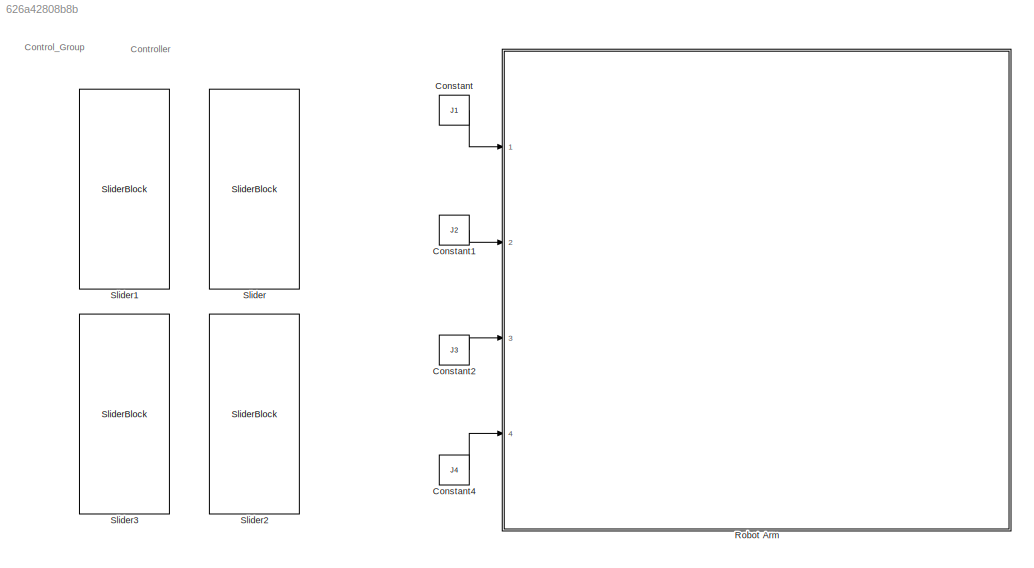
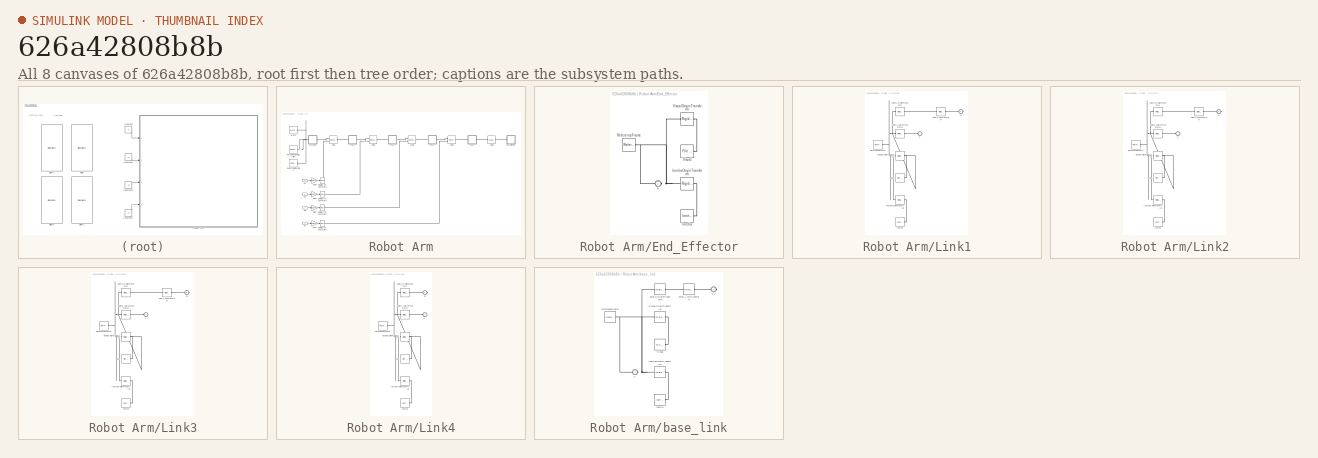
[diagram: thumbnail index - all 8 canvases of the model, root first then tree order]
MODEL slx_626a42808b8b
KIND model
CONFIG AbsTol = auto
CONFIG EnableMultiTasking = off
CONFIG FixedStep = auto
CONFIG MaxStep = auto
CONFIG MinStep = auto
CONFIG RelTol = 1e-3
CONFIG SampleTimeConstraint = Unconstrained
CONFIG SolverName = VariableStepAuto
CONFIG StartTime = 0.0
CONFIG StopTime = inf
WORKSPACE source: mxarray member
WORKSPACE J1 = 0
WORKSPACE J2 = 90.7830342577
WORKSPACE J3 = 87.6508972268
WORKSPACE J4 = 180
BLOCK [Constant] Constant
  Value = J1
BLOCK [Constant] Constant1
  Value = J2
BLOCK [Constant] Constant2
  Value = J3
BLOCK [Constant] Constant4
  Value = J4
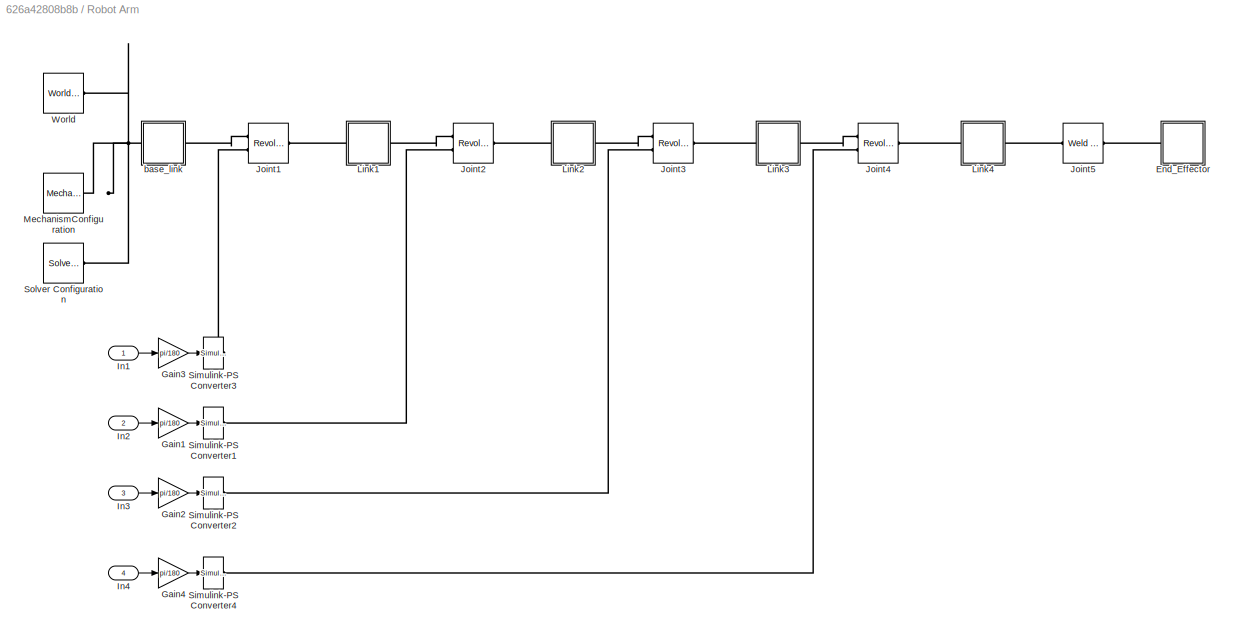
BLOCK [SubSystem] Robot Arm
  Ports = [4]
  RequestExecContextInheritance = off
BLOCK [SubSystem] Robot Arm/End_Effector
  Ports = [0, 0, 0, 0, 0, 1]
  RequestExecContextInheritance = off
BLOCK [PMIOPort] Robot Arm/End_Effector/F
  Side = Left
BLOCK [Reference] Robot Arm/End_Effector/Inertia  REF=sm_lib/Body Elements/Inertia
  Ports = [0, 0, 0, 0, 0, 0, 1]
  SourceBlock = sm_lib/Body Elements/Inertia
  SourceProductBaseCode = MS
  SourceType = Inertia
BLOCK [Reference] Robot Arm/End_Effector/InertiaOriginTransform  REF=sm_lib/Frames and
Transforms/Rigid
Transform
  Ports = [0, 0, 0, 0, 0, 1, 1]
  SourceBlock = sm_lib/Frames and\nTransforms/Rigid\nTransform
  SourceProductBaseCode = MS
  SourceType = Rigid\nTransform
BLOCK [Reference] Robot Arm/End_Effector/ReferenceFrame  REF=sm_lib/Frames and
Transforms/Reference
Frame
  Ports = [0, 0, 0, 0, 0, 0, 1]
  SourceBlock = sm_lib/Frames and\nTransforms/Reference\nFrame
  SourceProductBaseCode = MS
  SourceType = Reference\nFrame
BLOCK [Reference] Robot Arm/End_Effector/Visual  REF=sm_lib/Body Elements/File Solid
  Ports = [0, 0, 0, 0, 0, 0, 1]
  SourceBlock = sm_lib/Body Elements/File Solid
  SourceProductBaseCode = MS
  SourceType = File Solid
BLOCK [Reference] Robot Arm/End_Effector/VisualOriginTransform  REF=sm_lib/Frames and
Transforms/Rigid
Transform
  Ports = [0, 0, 0, 0, 0, 1, 1]
  SourceBlock = sm_lib/Frames and\nTransforms/Rigid\nTransform
  SourceProductBaseCode = MS
  SourceType = Rigid\nTransform
BLOCK [Gain] Robot Arm/Gain1
  Gain = pi/180
BLOCK [Gain] Robot Arm/Gain2
  Gain = pi/180
BLOCK [Gain] Robot Arm/Gain3
  Gain = pi/180
BLOCK [Gain] Robot Arm/Gain4
  Gain = pi/180
BLOCK [Inport] Robot Arm/In1
BLOCK [Inport] Robot Arm/In2
  Port = 2
BLOCK [Inport] Robot Arm/In3
  Port = 3
BLOCK [Inport] Robot Arm/In4
  Port = 4
BLOCK [Reference] Robot Arm/Joint1  REF=sm_lib/Joints/Revolute Joint
  Ports = [0, 0, 0, 0, 0, 2, 1]
  SourceBlock = sm_lib/Joints/Revolute Joint
  SourceProductBaseCode = MS
  SourceType = Revolute Joint
BLOCK [Reference] Robot Arm/Joint2  REF=sm_lib/Joints/Revolute Joint
  Ports = [0, 0, 0, 0, 0, 2, 1]
  SourceBlock = sm_lib/Joints/Revolute Joint
  SourceProductBaseCode = MS
  SourceType = Revolute Joint
BLOCK [Reference] Robot Arm/Joint3  REF=sm_lib/Joints/Revolute Joint
  Ports = [0, 0, 0, 0, 0, 2, 1]
  SourceBlock = sm_lib/Joints/Revolute Joint
  SourceProductBaseCode = MS
  SourceType = Revolute Joint
BLOCK [Reference] Robot Arm/Joint4  REF=sm_lib/Joints/Revolute Joint
  Ports = [0, 0, 0, 0, 0, 2, 1]
  SourceBlock = sm_lib/Joints/Revolute Joint
  SourceProductBaseCode = MS
  SourceType = Revolute Joint
BLOCK [Reference] Robot Arm/Joint5  REF=sm_lib/Joints/Weld Joint
  Ports = [0, 0, 0, 0, 0, 1, 1]
  SourceBlock = sm_lib/Joints/Weld Joint
  SourceProductBaseCode = MS
  SourceType = Weld Joint
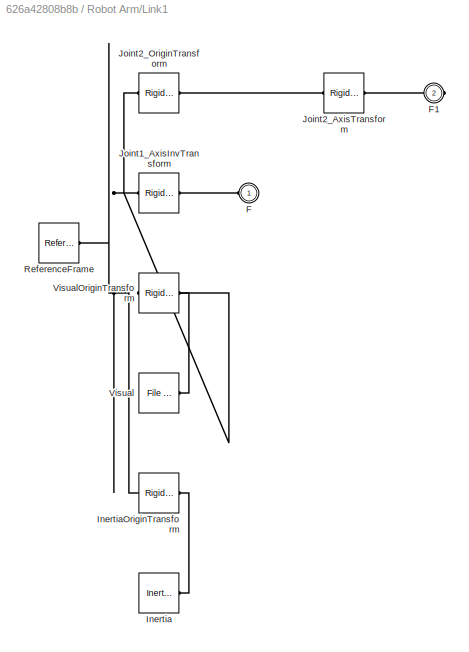
BLOCK [SubSystem] Robot Arm/Link1
  Ports = [0, 0, 0, 0, 0, 1, 1]
  RequestExecContextInheritance = off
BLOCK [PMIOPort] Robot Arm/Link1/F
  Side = Left
BLOCK [PMIOPort] Robot Arm/Link1/F1
  Port = 2
  Side = Right
BLOCK [Reference] Robot Arm/Link1/Inertia  REF=sm_lib/Body Elements/Inertia
  Ports = [0, 0, 0, 0, 0, 0, 1]
  SourceBlock = sm_lib/Body Elements/Inertia
  SourceProductBaseCode = MS
  SourceType = Inertia
BLOCK [Reference] Robot Arm/Link1/InertiaOriginTransform  REF=sm_lib/Frames and
Transforms/Rigid
Transform
  Ports = [0, 0, 0, 0, 0, 1, 1]
  SourceBlock = sm_lib/Frames and\nTransforms/Rigid\nTransform
  SourceProductBaseCode = MS
  SourceType = Rigid\nTransform
BLOCK [Reference] Robot Arm/Link1/Joint1_AxisInvTransform  REF=sm_lib/Frames and
Transforms/Rigid
Transform
  Ports = [0, 0, 0, 0, 0, 1, 1]
  SourceBlock = sm_lib/Frames and\nTransforms/Rigid\nTransform
  SourceProductBaseCode = MS
  SourceType = Rigid\nTransform
BLOCK [Reference] Robot Arm/Link1/Joint2_AxisTransform  REF=sm_lib/Frames and
Transforms/Rigid
Transform
  Ports = [0, 0, 0, 0, 0, 1, 1]
  SourceBlock = sm_lib/Frames and\nTransforms/Rigid\nTransform
  SourceProductBaseCode = MS
  SourceType = Rigid\nTransform
BLOCK [Reference] Robot Arm/Link1/Joint2_OriginTransform  REF=sm_lib/Frames and
Transforms/Rigid
Transform
  Ports = [0, 0, 0, 0, 0, 1, 1]
  SourceBlock = sm_lib/Frames and\nTransforms/Rigid\nTransform
  SourceProductBaseCode = MS
  SourceType = Rigid\nTransform
BLOCK [Reference] Robot Arm/Link1/ReferenceFrame  REF=sm_lib/Frames and
Transforms/Reference
Frame
  Ports = [0, 0, 0, 0, 0, 0, 1]
  SourceBlock = sm_lib/Frames and\nTransforms/Reference\nFrame
  SourceProductBaseCode = MS
  SourceType = Reference\nFrame
BLOCK [Reference] Robot Arm/Link1/Visual  REF=sm_lib/Body Elements/File Solid
  Ports = [0, 0, 0, 0, 0, 0, 1]
  SourceBlock = sm_lib/Body Elements/File Solid
  SourceProductBaseCode = MS
  SourceType = File Solid
BLOCK [Reference] Robot Arm/Link1/VisualOriginTransform  REF=sm_lib/Frames and
Transforms/Rigid
Transform
  Ports = [0, 0, 0, 0, 0, 1, 1]
  SourceBlock = sm_lib/Frames and\nTransforms/Rigid\nTransform
  SourceProductBaseCode = MS
  SourceType = Rigid\nTransform
BLOCK [SubSystem] Robot Arm/Link2
  Ports = [0, 0, 0, 0, 0, 1, 1]
  RequestExecContextInheritance = off
BLOCK [PMIOPort] Robot Arm/Link2/F
  Side = Left
BLOCK [PMIOPort] Robot Arm/Link2/F1
  Port = 2
  Side = Right
BLOCK [Reference] Robot Arm/Link2/Inertia  REF=sm_lib/Body Elements/Inertia
  Ports = [0, 0, 0, 0, 0, 0, 1]
  SourceBlock = sm_lib/Body Elements/Inertia
  SourceProductBaseCode = MS
  SourceType = Inertia
BLOCK [Reference] Robot Arm/Link2/InertiaOriginTransform  REF=sm_lib/Frames and
Transforms/Rigid
Transform
  Ports = [0, 0, 0, 0, 0, 1, 1]
  SourceBlock = sm_lib/Frames and\nTransforms/Rigid\nTransform
  SourceProductBaseCode = MS
  SourceType = Rigid\nTransform
BLOCK [Reference] Robot Arm/Link2/Joint2_AxisInvTransform  REF=sm_lib/Frames and
Transforms/Rigid
Transform
  Ports = [0, 0, 0, 0, 0, 1, 1]
  SourceBlock = sm_lib/Frames and\nTransforms/Rigid\nTransform
  SourceProductBaseCode = MS
  SourceType = Rigid\nTransform
BLOCK [Reference] Robot Arm/Link2/Joint3_AxisTransform  REF=sm_lib/Frames and
Transforms/Rigid
Transform
  Ports = [0, 0, 0, 0, 0, 1, 1]
  SourceBlock = sm_lib/Frames and\nTransforms/Rigid\nTransform
  SourceProductBaseCode = MS
  SourceType = Rigid\nTransform
BLOCK [Reference] Robot Arm/Link2/Joint3_OriginTransform  REF=sm_lib/Frames and
Transforms/Rigid
Transform
  Ports = [0, 0, 0, 0, 0, 1, 1]
  SourceBlock = sm_lib/Frames and\nTransforms/Rigid\nTransform
  SourceProductBaseCode = MS
  SourceType = Rigid\nTransform
BLOCK [Reference] Robot Arm/Link2/ReferenceFrame  REF=sm_lib/Frames and
Transforms/Reference
Frame
  Ports = [0, 0, 0, 0, 0, 0, 1]
  SourceBlock = sm_lib/Frames and\nTransforms/Reference\nFrame
  SourceProductBaseCode = MS
  SourceType = Reference\nFrame
BLOCK [Reference] Robot Arm/Link2/Visual  REF=sm_lib/Body Elements/File Solid
  Ports = [0, 0, 0, 0, 0, 0, 1]
  SourceBlock = sm_lib/Body Elements/File Solid
  SourceProductBaseCode = MS
  SourceType = File Solid
BLOCK [Reference] Robot Arm/Link2/VisualOriginTransform  REF=sm_lib/Frames and
Transforms/Rigid
Transform
  Ports = [0, 0, 0, 0, 0, 1, 1]
  SourceBlock = sm_lib/Frames and\nTransforms/Rigid\nTransform
  SourceProductBaseCode = MS
  SourceType = Rigid\nTransform
BLOCK [SubSystem] Robot Arm/Link3
  Ports = [0, 0, 0, 0, 0, 1, 1]
  RequestExecContextInheritance = off
BLOCK [PMIOPort] Robot Arm/Link3/F
  Side = Left
BLOCK [PMIOPort] Robot Arm/Link3/F1
  Port = 2
  Side = Right
BLOCK [Reference] Robot Arm/Link3/Inertia  REF=sm_lib/Body Elements/Inertia
  Ports = [0, 0, 0, 0, 0, 0, 1]
  SourceBlock = sm_lib/Body Elements/Inertia
  SourceProductBaseCode = MS
  SourceType = Inertia
BLOCK [Reference] Robot Arm/Link3/InertiaOriginTransform  REF=sm_lib/Frames and
Transforms/Rigid
Transform
  Ports = [0, 0, 0, 0, 0, 1, 1]
  SourceBlock = sm_lib/Frames and\nTransforms/Rigid\nTransform
  SourceProductBaseCode = MS
  SourceType = Rigid\nTransform
BLOCK [Reference] Robot Arm/Link3/Joint3_AxisInvTransform  REF=sm_lib/Frames and
Transforms/Rigid
Transform
  Ports = [0, 0, 0, 0, 0, 1, 1]
  SourceBlock = sm_lib/Frames and\nTransforms/Rigid\nTransform
  SourceProductBaseCode = MS
  SourceType = Rigid\nTransform
BLOCK [Reference] Robot Arm/Link3/Joint4_AxisTransform  REF=sm_lib/Frames and
Transforms/Rigid
Transform
  Ports = [0, 0, 0, 0, 0, 1, 1]
  SourceBlock = sm_lib/Frames and\nTransforms/Rigid\nTransform
  SourceProductBaseCode = MS
  SourceType = Rigid\nTransform
BLOCK [Reference] Robot Arm/Link3/Joint4_OriginTransform  REF=sm_lib/Frames and
Transforms/Rigid
Transform
  Ports = [0, 0, 0, 0, 0, 1, 1]
  SourceBlock = sm_lib/Frames and\nTransforms/Rigid\nTransform
  SourceProductBaseCode = MS
  SourceType = Rigid\nTransform
BLOCK [Reference] Robot Arm/Link3/ReferenceFrame  REF=sm_lib/Frames and
Transforms/Reference
Frame
  Ports = [0, 0, 0, 0, 0, 0, 1]
  SourceBlock = sm_lib/Frames and\nTransforms/Reference\nFrame
  SourceProductBaseCode = MS
  SourceType = Reference\nFrame
BLOCK [Reference] Robot Arm/Link3/Visual  REF=sm_lib/Body Elements/File Solid
  Ports = [0, 0, 0, 0, 0, 0, 1]
  SourceBlock = sm_lib/Body Elements/File Solid
  SourceProductBaseCode = MS
  SourceType = File Solid
BLOCK [Reference] Robot Arm/Link3/VisualOriginTransform  REF=sm_lib/Frames and
Transforms/Rigid
Transform
  Ports = [0, 0, 0, 0, 0, 1, 1]
  SourceBlock = sm_lib/Frames and\nTransforms/Rigid\nTransform
  SourceProductBaseCode = MS
  SourceType = Rigid\nTransform
BLOCK [SubSystem] Robot Arm/Link4
  Ports = [0, 0, 0, 0, 0, 1, 1]
  RequestExecContextInheritance = off
BLOCK [PMIOPort] Robot Arm/Link4/F
  Side = Left
BLOCK [PMIOPort] Robot Arm/Link4/F1
  Port = 2
  Side = Right
BLOCK [Reference] Robot Arm/Link4/Inertia  REF=sm_lib/Body Elements/Inertia
  Ports = [0, 0, 0, 0, 0, 0, 1]
  SourceBlock = sm_lib/Body Elements/Inertia
  SourceProductBaseCode = MS
  SourceType = Inertia
BLOCK [Reference] Robot Arm/Link4/InertiaOriginTransform  REF=sm_lib/Frames and
Transforms/Rigid
Transform
  Ports = [0, 0, 0, 0, 0, 1, 1]
  SourceBlock = sm_lib/Frames and\nTransforms/Rigid\nTransform
  SourceProductBaseCode = MS
  SourceType = Rigid\nTransform
BLOCK [Reference] Robot Arm/Link4/Joint4_AxisInvTransform  REF=sm_lib/Frames and
Transforms/Rigid
Transform
  Ports = [0, 0, 0, 0, 0, 1, 1]
  SourceBlock = sm_lib/Frames and\nTransforms/Rigid\nTransform
  SourceProductBaseCode = MS
  SourceType = Rigid\nTransform
BLOCK [Reference] Robot Arm/Link4/Joint5_OriginTransform  REF=sm_lib/Frames and
Transforms/Rigid
Transform
  Ports = [0, 0, 0, 0, 0, 1, 1]
  SourceBlock = sm_lib/Frames and\nTransforms/Rigid\nTransform
  SourceProductBaseCode = MS
  SourceType = Rigid\nTransform
BLOCK [Reference] Robot Arm/Link4/ReferenceFrame  REF=sm_lib/Frames and
Transforms/Reference
Frame
  Ports = [0, 0, 0, 0, 0, 0, 1]
  SourceBlock = sm_lib/Frames and\nTransforms/Reference\nFrame
  SourceProductBaseCode = MS
  SourceType = Reference\nFrame
BLOCK [Reference] Robot Arm/Link4/Visual  REF=sm_lib/Body Elements/File Solid
  Ports = [0, 0, 0, 0, 0, 0, 1]
  SourceBlock = sm_lib/Body Elements/File Solid
  SourceProductBaseCode = MS
  SourceType = File Solid
BLOCK [Reference] Robot Arm/Link4/VisualOriginTransform  REF=sm_lib/Frames and
Transforms/Rigid
Transform
  Ports = [0, 0, 0, 0, 0, 1, 1]
  SourceBlock = sm_lib/Frames and\nTransforms/Rigid\nTransform
  SourceProductBaseCode = MS
  SourceType = Rigid\nTransform
BLOCK [Reference] Robot Arm/MechanismConfiguration  REF=sm_lib/Utilities/Mechanism
Configuration
  Ports = [0, 0, 0, 0, 0, 0, 1]
  SourceBlock = sm_lib/Utilities/Mechanism\nConfiguration
  SourceProductBaseCode = MS
  SourceType = Mechanism\nConfiguration
BLOCK [Reference] Robot Arm/Simulink-PS Converter1  REF=nesl_utility/Simulink-PS
Converter
  Ports = [1, 0, 0, 0, 0, 0, 1]
  SourceBlock = nesl_utility/Simulink-PS\nConverter
  SourceProductBaseCode = SS,PW,VE
  SourceType = Simulink-PS\nConverter
BLOCK [Reference] Robot Arm/Simulink-PS Converter2  REF=nesl_utility/Simulink-PS
Converter
  Ports = [1, 0, 0, 0, 0, 0, 1]
  SourceBlock = nesl_utility/Simulink-PS\nConverter
  SourceProductBaseCode = SS,PW,VE
  SourceType = Simulink-PS\nConverter
BLOCK [Reference] Robot Arm/Simulink-PS Converter3  REF=nesl_utility/Simulink-PS
Converter
  Ports = [1, 0, 0, 0, 0, 0, 1]
  SourceBlock = nesl_utility/Simulink-PS\nConverter
  SourceProductBaseCode = SS,PW,VE
  SourceType = Simulink-PS\nConverter
BLOCK [Reference] Robot Arm/Simulink-PS Converter4  REF=nesl_utility/Simulink-PS
Converter
  Ports = [1, 0, 0, 0, 0, 0, 1]
  SourceBlock = nesl_utility/Simulink-PS\nConverter
  SourceProductBaseCode = SS,PW,VE
  SourceType = Simulink-PS\nConverter
BLOCK [Reference] Robot Arm/Solver Configuration  REF=nesl_utility/Solver
Configuration
  Ports = [0, 0, 0, 0, 0, 0, 1]
  SourceBlock = nesl_utility/Solver\nConfiguration
  SourceProductBaseCode = SS,PW,VE
  SourceType = Solver\nConfiguration
BLOCK [Reference] Robot Arm/World  REF=sm_lib/Frames and
Transforms/World Frame
  Ports = [0, 0, 0, 0, 0, 0, 1]
  SourceBlock = sm_lib/Frames and\nTransforms/World Frame
  SourceProductBaseCode = MS
  SourceType = World Frame
BLOCK [SubSystem] Robot Arm/base_link
  Ports = [0, 0, 0, 0, 0, 1, 1]
  RequestExecContextInheritance = off
BLOCK [PMIOPort] Robot Arm/base_link/F
  Side = Left
BLOCK [PMIOPort] Robot Arm/base_link/F1
  Port = 2
  Side = Right
BLOCK [Reference] Robot Arm/base_link/Inertia  REF=sm_lib/Body Elements/Inertia
  Ports = [0, 0, 0, 0, 0, 0, 1]
  SourceBlock = sm_lib/Body Elements/Inertia
  SourceProductBaseCode = MS
  SourceType = Inertia
BLOCK [Reference] Robot Arm/base_link/InertiaOriginTransform  REF=sm_lib/Frames and
Transforms/Rigid
Transform
  Ports = [0, 0, 0, 0, 0, 1, 1]
  SourceBlock = sm_lib/Frames and\nTransforms/Rigid\nTransform
  SourceProductBaseCode = MS
  SourceType = Rigid\nTransform
BLOCK [Reference] Robot Arm/base_link/Joint1_AxisTransform  REF=sm_lib/Frames and
Transforms/Rigid
Transform
  Ports = [0, 0, 0, 0, 0, 1, 1]
  SourceBlock = sm_lib/Frames and\nTransforms/Rigid\nTransform
  SourceProductBaseCode = MS
  SourceType = Rigid\nTransform
BLOCK [Reference] Robot Arm/base_link/Joint1_OriginTransform  REF=sm_lib/Frames and
Transforms/Rigid
Transform
  Ports = [0, 0, 0, 0, 0, 1, 1]
  SourceBlock = sm_lib/Frames and\nTransforms/Rigid\nTransform
  SourceProductBaseCode = MS
  SourceType = Rigid\nTransform
BLOCK [Reference] Robot Arm/base_link/ReferenceFrame  REF=sm_lib/Frames and
Transforms/Reference
Frame
  Ports = [0, 0, 0, 0, 0, 0, 1]
  SourceBlock = sm_lib/Frames and\nTransforms/Reference\nFrame
  SourceProductBaseCode = MS
  SourceType = Reference\nFrame
BLOCK [Reference] Robot Arm/base_link/Visual  REF=sm_lib/Body Elements/File Solid
  Ports = [0, 0, 0, 0, 0, 0, 1]
  SourceBlock = sm_lib/Body Elements/File Solid
  SourceProductBaseCode = MS
  SourceType = File Solid
BLOCK [Reference] Robot Arm/base_link/VisualOriginTransform  REF=sm_lib/Frames and
Transforms/Rigid
Transform
  Ports = [0, 0, 0, 0, 0, 1, 1]
  SourceBlock = sm_lib/Frames and\nTransforms/Rigid\nTransform
  SourceProductBaseCode = MS
  SourceType = Rigid\nTransform
BLOCK [SliderBlock] Slider
  NameLocation = left
  ScaleMax = 180
BLOCK [SliderBlock] Slider1
  NameLocation = left
  ScaleMax = 180
BLOCK [SliderBlock] Slider2
  NameLocation = left
  ScaleMax = 180
BLOCK [SliderBlock] Slider3
  NameLocation = top
  ScaleMax = 180
ANNOTATION (root): Controller
ANNOTATION (root): Control_Group
LINE Constant1:1 -> Robot Arm:2
LINE Constant2:1 -> Robot Arm:3
LINE Constant4:1 -> Robot Arm:4
LINE Constant:1 -> Robot Arm:1
LINE Robot Arm/Gain1:1 -> Robot Arm/Simulink-PS Converter1:1
LINE Robot Arm/Gain2:1 -> Robot Arm/Simulink-PS Converter2:1
LINE Robot Arm/Gain3:1 -> Robot Arm/Simulink-PS Converter3:1
LINE Robot Arm/Gain4:1 -> Robot Arm/Simulink-PS Converter4:1
LINE Robot Arm/In1:1 -> Robot Arm/Gain3:1
LINE Robot Arm/In2:1 -> Robot Arm/Gain1:1
LINE Robot Arm/In3:1 -> Robot Arm/Gain2:1
LINE Robot Arm/In4:1 -> Robot Arm/Gain4:1
PNET net1: Robot Arm/End_Effector/F:RConn1 -- Robot Arm/End_Effector/InertiaOriginTransform:LConn1 -- Robot Arm/End_Effector/ReferenceFrame:RConn1 -- Robot Arm/End_Effector/VisualOriginTransform:LConn1
PLINE Robot Arm/End_Effector/Inertia:RConn1 -- Robot Arm/End_Effector/InertiaOriginTransform:RConn1
PLINE Robot Arm/End_Effector/Visual:RConn1 -- Robot Arm/End_Effector/VisualOriginTransform:RConn1
PLINE Robot Arm/End_Effector:LConn1 -- Robot Arm/Joint5:RConn1
PLINE Robot Arm/Joint1:LConn1 -- Robot Arm/base_link:RConn1
PLINE Robot Arm/Joint1:LConn2 -- Robot Arm/Simulink-PS Converter3:RConn1
PLINE Robot Arm/Joint1:RConn1 -- Robot Arm/Link1:LConn1
PLINE Robot Arm/Joint2:LConn1 -- Robot Arm/Link1:RConn1
PLINE Robot Arm/Joint2:LConn2 -- Robot Arm/Simulink-PS Converter1:RConn1
PLINE Robot Arm/Joint2:RConn1 -- Robot Arm/Link2:LConn1
PLINE Robot Arm/Joint3:LConn1 -- Robot Arm/Link2:RConn1
PLINE Robot Arm/Joint3:LConn2 -- Robot Arm/Simulink-PS Converter2:RConn1
PLINE Robot Arm/Joint3:RConn1 -- Robot Arm/Link3:LConn1
PLINE Robot Arm/Joint4:LConn1 -- Robot Arm/Link3:RConn1
PLINE Robot Arm/Joint4:LConn2 -- Robot Arm/Simulink-PS Converter4:RConn1
PLINE Robot Arm/Joint4:RConn1 -- Robot Arm/Link4:LConn1
PLINE Robot Arm/Joint5:LConn1 -- Robot Arm/Link4:RConn1
PLINE Robot Arm/Link1/F1:RConn1 -- Robot Arm/Link1/Joint2_AxisTransform:RConn1
PLINE Robot Arm/Link1/F:RConn1 -- Robot Arm/Link1/Joint1_AxisInvTransform:RConn1
PLINE Robot Arm/Link1/Inertia:RConn1 -- Robot Arm/Link1/InertiaOriginTransform:RConn1
PNET net2: Robot Arm/Link1/InertiaOriginTransform:LConn1 -- Robot Arm/Link1/Joint1_AxisInvTransform:LConn1 -- Robot Arm/Link1/Joint2_OriginTransform:LConn1 -- Robot Arm/Link1/ReferenceFrame:RConn1 -- Robot Arm/Link1/VisualOriginTransform:LConn1
PLINE Robot Arm/Link1/Joint2_AxisTransform:LConn1 -- Robot Arm/Link1/Joint2_OriginTransform:RConn1
PLINE Robot Arm/Link1/Visual:RConn1 -- Robot Arm/Link1/VisualOriginTransform:RConn1
PLINE Robot Arm/Link2/F1:RConn1 -- Robot Arm/Link2/Joint3_AxisTransform:RConn1
PLINE Robot Arm/Link2/F:RConn1 -- Robot Arm/Link2/Joint2_AxisInvTransform:RConn1
PLINE Robot Arm/Link2/Inertia:RConn1 -- Robot Arm/Link2/InertiaOriginTransform:RConn1
PNET net3: Robot Arm/Link2/InertiaOriginTransform:LConn1 -- Robot Arm/Link2/Joint2_AxisInvTransform:LConn1 -- Robot Arm/Link2/Joint3_OriginTransform:LConn1 -- Robot Arm/Link2/ReferenceFrame:RConn1 -- Robot Arm/Link2/VisualOriginTransform:LConn1
PLINE Robot Arm/Link2/Joint3_AxisTransform:LConn1 -- Robot Arm/Link2/Joint3_OriginTransform:RConn1
PLINE Robot Arm/Link2/Visual:RConn1 -- Robot Arm/Link2/VisualOriginTransform:RConn1
PLINE Robot Arm/Link3/F1:RConn1 -- Robot Arm/Link3/Joint4_AxisTransform:RConn1
PLINE Robot Arm/Link3/F:RConn1 -- Robot Arm/Link3/Joint3_AxisInvTransform:RConn1
PLINE Robot Arm/Link3/Inertia:RConn1 -- Robot Arm/Link3/InertiaOriginTransform:RConn1
PNET net4: Robot Arm/Link3/InertiaOriginTransform:LConn1 -- Robot Arm/Link3/Joint3_AxisInvTransform:LConn1 -- Robot Arm/Link3/Joint4_OriginTransform:LConn1 -- Robot Arm/Link3/ReferenceFrame:RConn1 -- Robot Arm/Link3/VisualOriginTransform:LConn1
PLINE Robot Arm/Link3/Joint4_AxisTransform:LConn1 -- Robot Arm/Link3/Joint4_OriginTransform:RConn1
PLINE Robot Arm/Link3/Visual:RConn1 -- Robot Arm/Link3/VisualOriginTransform:RConn1
PLINE Robot Arm/Link4/F1:RConn1 -- Robot Arm/Link4/Joint5_OriginTransform:RConn1
PLINE Robot Arm/Link4/F:RConn1 -- Robot Arm/Link4/Joint4_AxisInvTransform:RConn1
PLINE Robot Arm/Link4/Inertia:RConn1 -- Robot Arm/Link4/InertiaOriginTransform:RConn1
PNET net5: Robot Arm/Link4/InertiaOriginTransform:LConn1 -- Robot Arm/Link4/Joint4_AxisInvTransform:LConn1 -- Robot Arm/Link4/Joint5_OriginTransform:LConn1 -- Robot Arm/Link4/ReferenceFrame:RConn1 -- Robot Arm/Link4/VisualOriginTransform:LConn1
PLINE Robot Arm/Link4/Visual:RConn1 -- Robot Arm/Link4/VisualOriginTransform:RConn1
PNET net6: Robot Arm/MechanismConfiguration:RConn1 -- Robot Arm/Solver Configuration:RConn1 -- Robot Arm/World:RConn1 -- Robot Arm/base_link:LConn1
PLINE Robot Arm/base_link/F1:RConn1 -- Robot Arm/base_link/Joint1_AxisTransform:RConn1
PNET net7: Robot Arm/base_link/F:RConn1 -- Robot Arm/base_link/InertiaOriginTransform:LConn1 -- Robot Arm/base_link/Joint1_OriginTransform:LConn1 -- Robot Arm/base_link/ReferenceFrame:RConn1 -- Robot Arm/base_link/VisualOriginTransform:LConn1
PLINE Robot Arm/base_link/Inertia:RConn1 -- Robot Arm/base_link/InertiaOriginTransform:RConn1
PLINE Robot Arm/base_link/Joint1_AxisTransform:LConn1 -- Robot Arm/base_link/Joint1_OriginTransform:RConn1
PLINE Robot Arm/base_link/Visual:RConn1 -- Robot Arm/base_link/VisualOriginTransform:RConn1
note: PNET lines group multi-terminal physical nets as a canonical sorted terminal list (undirected conserving connections); 2-terminal nets keep the pairwise PLINE form
